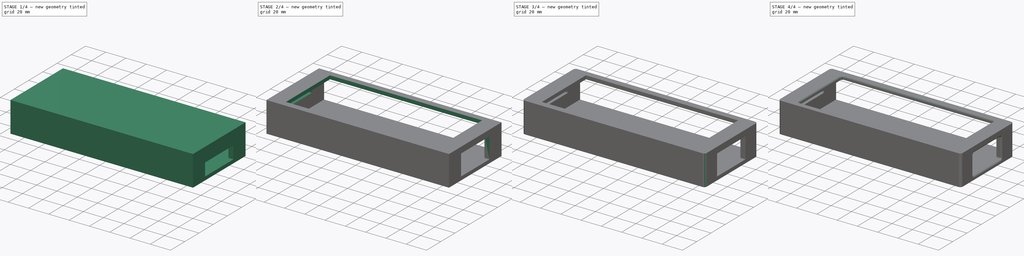
[diagram: build sequence overview — one tinted view per stage of 4, left to right]
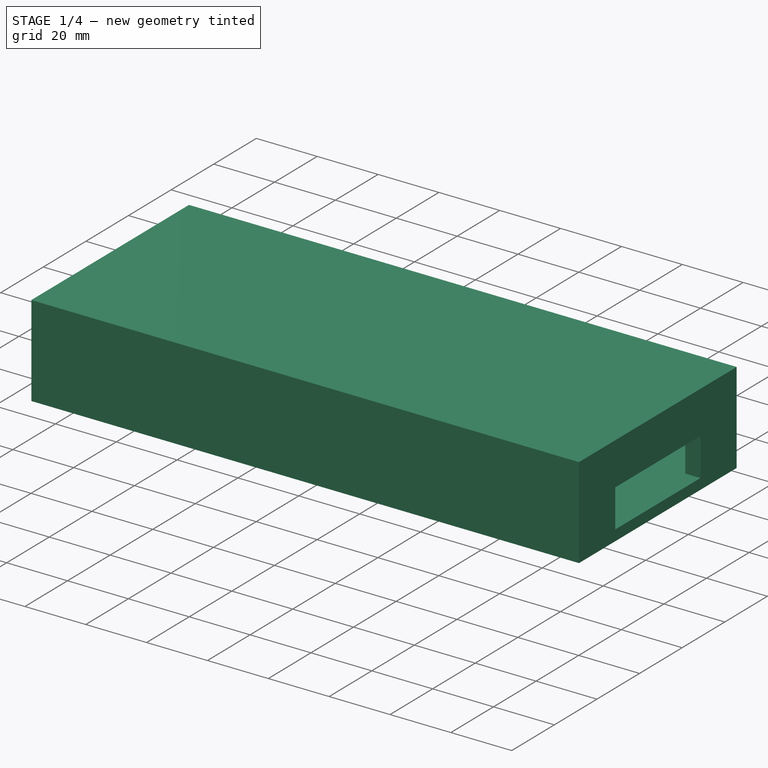
[diagram: stage 1 of 4 — iso view after this stage's code; geometry added in this stage tinted green]
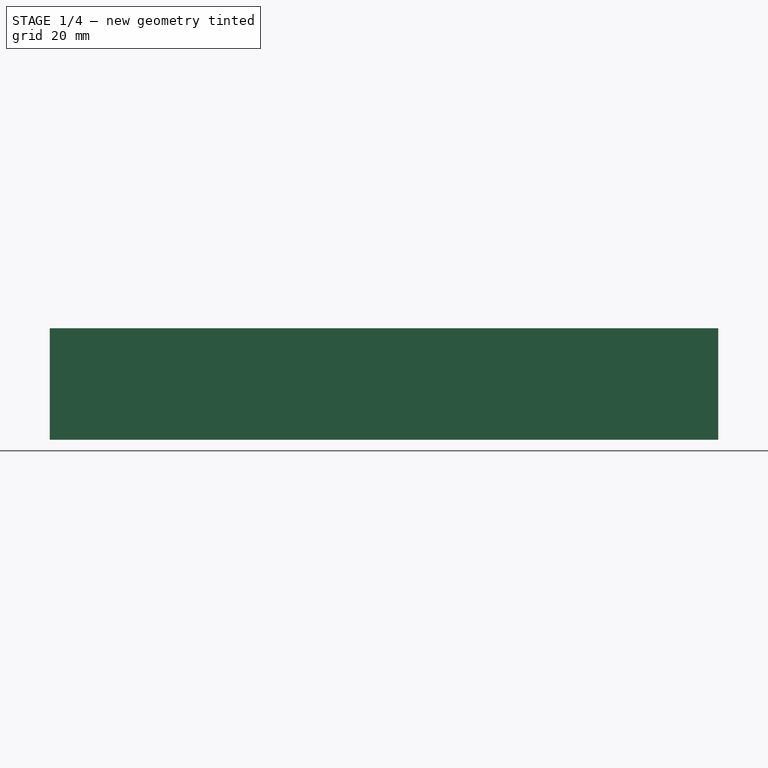
[diagram: stage 1 of 4 — front view after this stage's code; geometry added in this stage tinted green]
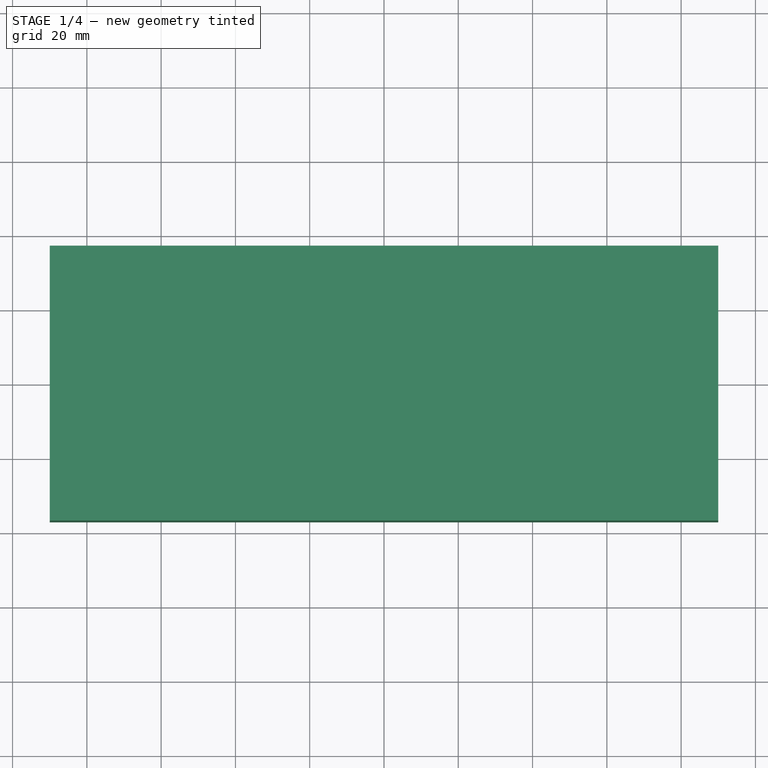
[diagram: stage 1 of 4 — top view after this stage's code; geometry added in this stage tinted green]
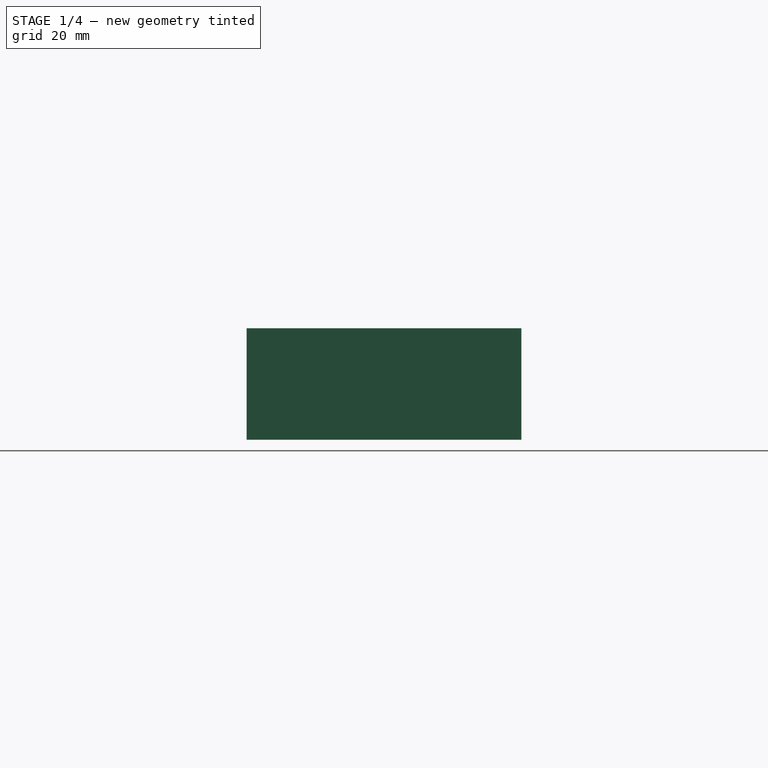
[diagram: stage 1 of 4 — right view after this stage's code; geometry added in this stage tinted green]
FCSTD DOCUMENT  (FreeCAD 1.0R39109 (Git))
Label: PortableMonitor_Phone_Fold3
License: All rights reserved
LicenseURL: https://en.wikipedia.org/wiki/All_rights_reserved
objects: Sketcher::SketchObject×7, PartDesign::Pocket×6, PartDesign::Fillet×4, PartDesign::Pad×1, PartDesign::Body×1
note: 48 computed .brp shape members not serialized (recipe doc carries the construction recipe); baked Part::Feature solids carry a one-line shape summary decoded from their .brp

FEATURE [Sketcher::SketchObject] Sketch  label="Sketch_Body"
  ArcFitTolerance = 1e-06
  AttachmentSupport = -> [XY_Plane]
  FullyConstrained = true
  MakeInternals = false
  MapMode = 5
  sketch-geometry (5):
    g0: LineSegment StartX=-90 StartY=-37 StartZ=0 EndX=90 EndY=-37 EndZ=0
    g1: LineSegment StartX=90 StartY=-37 StartZ=0 EndX=90 EndY=37 EndZ=0
    g2: LineSegment StartX=90 StartY=37 StartZ=0 EndX=-90 EndY=37 EndZ=0
    g3: LineSegment StartX=-90 StartY=37 StartZ=0 EndX=-90 EndY=-37 EndZ=0
    g4: GeomPoint [constr] X=0 Y=0 Z=0
  constraints (12):
    c: Coincident(g0,g1)
    c: Coincident(g1,g2)
    c: Coincident(g2,g3)
    c: Coincident(g3,g0)
    c: Horizontal(g0)
    c: Horizontal(g2)
    c: Vertical(g1)
    c: Vertical(g3)
    c: Symmetric(g2,g0,g4)
    c: Distance(g1,g3) = 180
    c: Distance(g0,g2) = 74
    c: Coincident(g4,g-1)
FEATURE [PartDesign::Pad] Pad  label="Body"
  Direction = (0,0,1)
  Length = 30
  Length2 = 10
  Profile = -> Sketch
  ReferenceAxis = -> Sketch [N_Axis]
  Refine = true
  Suppressed = false
  Type = 0
FEATURE [Sketcher::SketchObject] Sketch001  label="Sketch_InnerFold3"
  ArcFitTolerance = 1e-06
  AttachmentSupport = -> [Pad]
  FullyConstrained = true
  MakeInternals = false
  MapMode = 5
  Placement = pos=(0,37,0) rot=(0,0.707107,0.707107;3.14159rad)
  sketch-geometry (5):
    g0: LineSegment StartX=-85 StartY=3.5 StartZ=0 EndX=85 EndY=3.5 EndZ=0
    g1: LineSegment StartX=85 StartY=3.5 StartZ=0 EndX=85 EndY=26.5 EndZ=0
    g2: LineSegment StartX=85 StartY=26.5 StartZ=0 EndX=-85 EndY=26.5 EndZ=0
    g3: LineSegment StartX=-85 StartY=26.5 StartZ=0 EndX=-85 EndY=3.5 EndZ=0
    g4: GeomPoint [constr] X=0 Y=15 Z=0
  constraints (13):
    c: Coincident(g0,g1)
    c: Coincident(g1,g2)
    c: Coincident(g2,g3)
    c: Coincident(g3,g0)
    c: Horizontal(g0)
    c: Horizontal(g2)
    c: Vertical(g1)
    c: Vertical(g3)
    c: Symmetric(g2,g0,g4)
    c: Distance(g1,g3) = 170
    c: Distance(g0,g2) = 23
    c: Vertical(g4,g-1)
    c: Distance(g-1,g0) = 3.5
FEATURE [PartDesign::Pocket] Pocket  label="InnerFold3"
  BaseFeature = -> Pad
  Direction = (0,-1,2e-16)
  Length = 71
  Length2 = 5
  Profile = -> Sketch001
  ReferenceAxis = -> Sketch001 [N_Axis]
  Refine = true
  Suppressed = false
  Type = 0
FEATURE [Sketcher::SketchObject] Sketch002  label="Sketch_HoleUSB"
  ArcFitTolerance = 1e-06
  AttachmentSupport = -> [Pocket]
  FullyConstrained = true
  MakeInternals = false
  MapMode = 5
  Placement = pos=(90,0,0) rot=(0.57735,0.57735,0.57735;2.0944rad)
  sketch-geometry (5):
    g0: LineSegment StartX=-20 StartY=3.5 StartZ=0 EndX=20 EndY=3.5 EndZ=0
    g1: LineSegment StartX=20 StartY=3.5 StartZ=0 EndX=20 EndY=16 EndZ=0
    g2: LineSegment StartX=20 StartY=16 StartZ=0 EndX=-20 EndY=16 EndZ=0
    g3: LineSegment StartX=-20 StartY=16 StartZ=0 EndX=-20 EndY=3.5 EndZ=0
    g4: GeomPoint [constr] X=0 Y=9.75 Z=0
  constraints (13):
    c: Coincident(g0,g1)
    c: Coincident(g1,g2)
    c: Coincident(g2,g3)
    c: Coincident(g3,g0)
    c: Horizontal(g0)
    c: Horizontal(g2)
    c: Vertical(g1)
    c: Vertical(g3)
    c: Symmetric(g2,g0,g4)
    c: Distance(g1,g3) = 40
    c: Distance(g0,g2) = 12.5
    c: Vertical(g-1,g4)
    c: Distance(g-1,g0) = 3.5
FEATURE [PartDesign::Pocket] Pocket001  label="HoleUSB"
  BaseFeature = -> Pocket
  Direction = (-1,0,0)
  Length = 5
  Length2 = 5
  Profile = -> Sketch002
  ReferenceAxis = -> Sketch002 [N_Axis]
  Refine = true
  Suppressed = false
  Type = 0
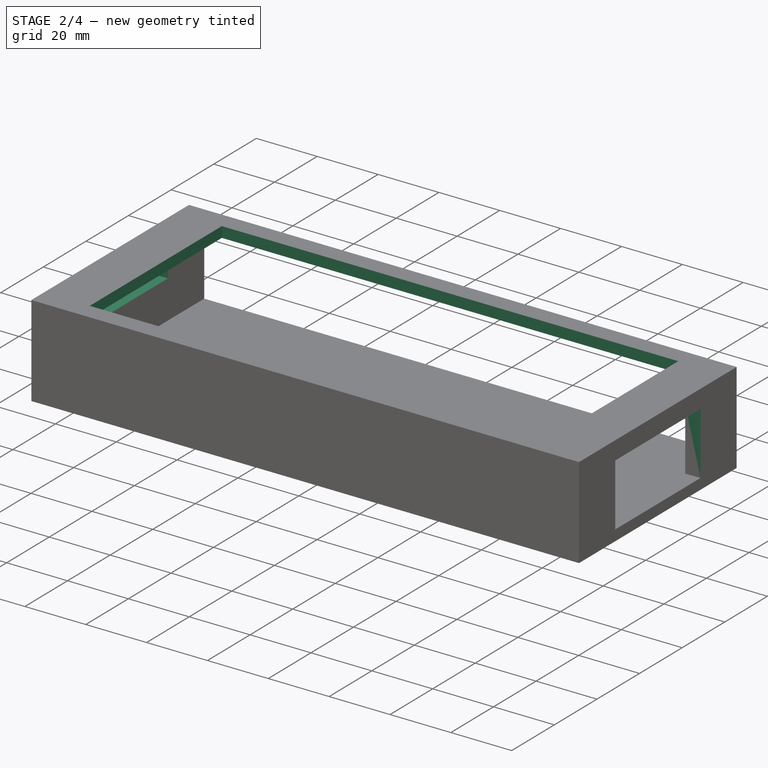
[diagram: stage 2 of 4 — iso view after this stage's code; geometry added in this stage tinted green]
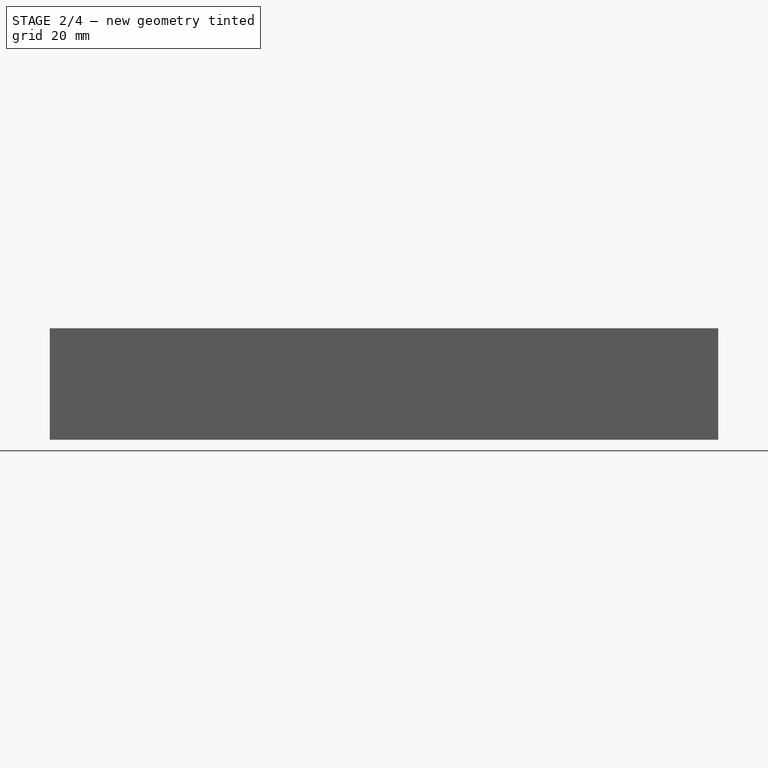
[diagram: stage 2 of 4 — front view after this stage's code; geometry added in this stage tinted green]
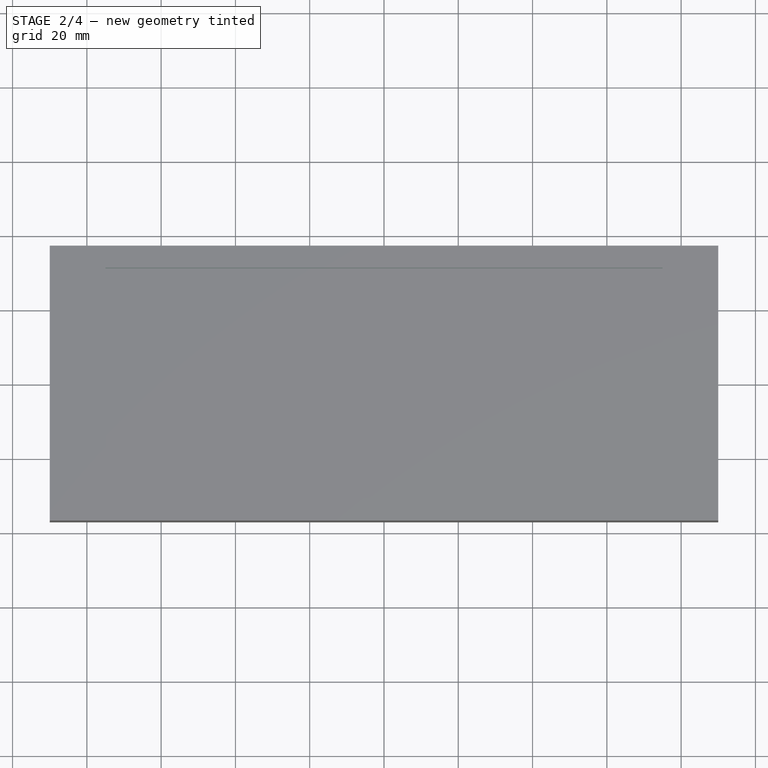
[diagram: stage 2 of 4 — top view after this stage's code; geometry added in this stage tinted green]
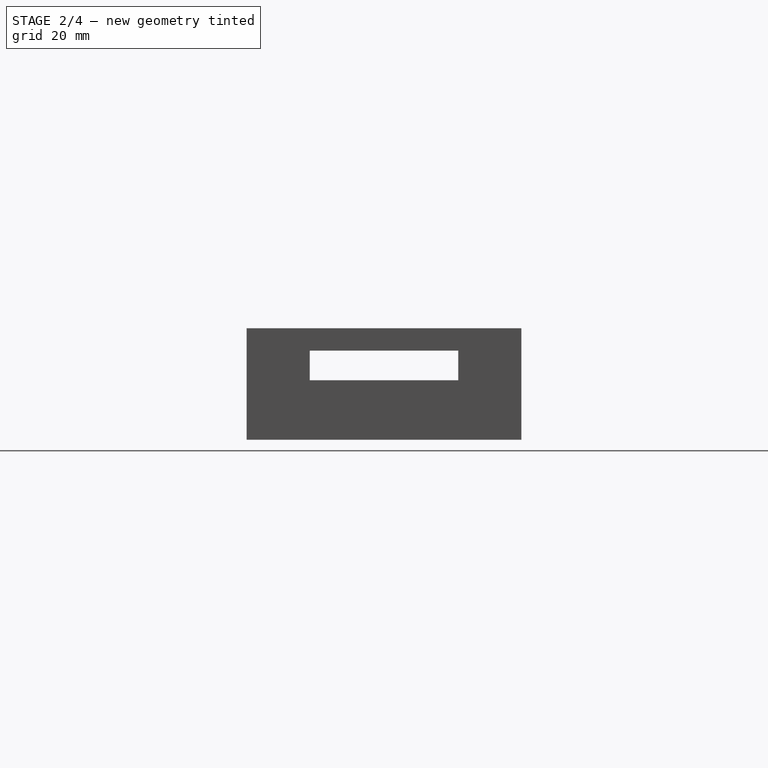
[diagram: stage 2 of 4 — right view after this stage's code; geometry added in this stage tinted green]
FEATURE [Sketcher::SketchObject] Sketch003  label="Sketch_HoleSPK"
  ArcFitTolerance = 1e-06
  AttachmentSupport = -> [Pocket001]
  FullyConstrained = true
  MakeInternals = false
  MapMode = 5
  Placement = pos=(-90,0,0) rot=(0.57735,-0.57735,-0.57735;2.0944rad)
  sketch-geometry (5):
    g0: LineSegment StartX=-20 StartY=16 StartZ=0 EndX=20 EndY=16 EndZ=0
    g1: LineSegment StartX=20 StartY=16 StartZ=0 EndX=20 EndY=24 EndZ=0
    g2: LineSegment StartX=20 StartY=24 StartZ=0 EndX=-20 EndY=24 EndZ=0
    g3: LineSegment StartX=-20 StartY=24 StartZ=0 EndX=-20 EndY=16 EndZ=0
    g4: GeomPoint [constr] X=0 Y=20 Z=0
  constraints (13):
    c: Coincident(g0,g1)
    c: Coincident(g1,g2)
    c: Coincident(g2,g3)
    c: Coincident(g3,g0)
    c: Horizontal(g0)
    c: Horizontal(g2)
    c: Vertical(g1)
    c: Vertical(g3)
    c: Symmetric(g2,g0,g4)
    c: Distance(g1,g3) = 40
    c: Distance(g0,g2) = 8
    c: Vertical(g-1,g4)
    c: DistanceY(g-1,g4) = 20
FEATURE [PartDesign::Pocket] Pocket002  label="HoleSPK"
  BaseFeature = -> Pocket001
  Direction = (1,0,0)
  Length = 200
  Length2 = 5
  Profile = -> Sketch003
  ReferenceAxis = -> Sketch003 [N_Axis]
  Refine = true
  Suppressed = false
  Type = 0
FEATURE [Sketcher::SketchObject] Sketch004  label="Sketch_HoleDisplay"
  ArcFitTolerance = 1e-06
  AttachmentSupport = -> [Pocket002]
  FullyConstrained = true
  MakeInternals = false
  MapMode = 5
  Placement = pos=(0,0,30) rot=(0,0,1;0rad)
  sketch-geometry (5):
    g0: LineSegment StartX=-75 StartY=-31 StartZ=0 EndX=75 EndY=-31 EndZ=0
    g1: LineSegment StartX=75 StartY=-31 StartZ=0 EndX=75 EndY=31 EndZ=0
    g2: LineSegment StartX=75 StartY=31 StartZ=0 EndX=-75 EndY=31 EndZ=0
    g3: LineSegment StartX=-75 StartY=31 StartZ=0 EndX=-75 EndY=-31 EndZ=0
    g4: GeomPoint [constr] X=0 Y=0 Z=0
  constraints (12):
    c: Coincident(g0,g1)
    c: Coincident(g1,g2)
    c: Coincident(g2,g3)
    c: Coincident(g3,g0)
    c: Horizontal(g0)
    c: Horizontal(g2)
    c: Vertical(g1)
    c: Vertical(g3)
    c: Symmetric(g2,g0,g4)
    c: Distance(g1,g3) = 150
    c: Distance(g0,g2) = 62
    c: Coincident(g4,g-1)
FEATURE [PartDesign::Pocket] Pocket003  label="HoleDisplay"
  BaseFeature = -> Pocket002
  Direction = (0,0,-1)
  Length = 5
  Length2 = 5
  Profile = -> Sketch004
  ReferenceAxis = -> Sketch004 [N_Axis]
  Refine = true
  Suppressed = false
  Type = 0
FEATURE [Sketcher::SketchObject] Sketch005  label="Sketch_MateMain"
  ArcFitTolerance = 1e-06
  AttachmentSupport = -> [Pocket003]
  FullyConstrained = true
  MakeInternals = false
  MapMode = 5
  Placement = pos=(0,0,0) rot=(1,0,0;3.14159rad)
  sketch-geometry (10):
    g0: LineSegment StartX=-80 StartY=17 StartZ=0 EndX=20 EndY=17 EndZ=0
    g1: LineSegment StartX=20 StartY=17 StartZ=0 EndX=20 EndY=27 EndZ=0
    g2: LineSegment StartX=20 StartY=27 StartZ=0 EndX=-80 EndY=27 EndZ=0
    g3: LineSegment StartX=-80 StartY=27 StartZ=0 EndX=-80 EndY=17 EndZ=0
    g4: GeomPoint [constr] X=-30 Y=22 Z=0
    g5: LineSegment [constr] StartX=-90 StartY=-37 StartZ=0 EndX=90 EndY=-37 EndZ=0
    g6: LineSegment [constr] StartX=90 StartY=-37 StartZ=0 EndX=90 EndY=37 EndZ=0
    g7: LineSegment [constr] StartX=90 StartY=37 StartZ=0 EndX=-90 EndY=37 EndZ=0
    g8: LineSegment [constr] StartX=-90 StartY=37 StartZ=0 EndX=-90 EndY=-37 EndZ=0
    g9: GeomPoint [constr] X=0 Y=0 Z=0
  constraints (25):
    c: Coincident(g0,g1)
    c: Coincident(g1,g2)
    c: Coincident(g2,g3)
    c: Coincident(g3,g0)
    c: Horizontal(g0)
    c: Horizontal(g2)
    c: Vertical(g1)
    c: Vertical(g3)
    c: Symmetric(g2,g0,g4)
    c: Distance(g1,g3) = 100
    c: Distance(g0,g2) = 10
    c: Coincident(g5,g6)
    c: Coincident(g6,g7)
    c: Coincident(g7,g8)
    c: Coincident(g8,g5)
    c: Horizontal(g5)
    c: Horizontal(g7)
    c: Vertical(g6)
    c: Vertical(g8)
    c: Symmetric(g7,g5,g9)
    c: Distance(g6,g8) = 180
    c: Distance(g5,g7) = 74
    c: Coincident(g9,g-1)
    c: DistanceY(g2,g7) = 10
    c: Distance(g8,g3) = 10
FEATURE [Sketcher::SketchObject] Sketch006  label="Sketch_Hole_Screw_VESA"
  ArcFitTolerance = 1e-06
  FullyConstrained = true
  MakeInternals = false
  MapMode = 5
  Placement = pos=(0,0,3.5) rot=(0,0,1;0rad)
  sketch-geometry (1):
    g0: Circle CenterX=21.5 CenterY=-4.5 CenterZ=0 NormalX=0 NormalY=0 NormalZ=1 AngleXU=0 Radius=6
  constraints (3):
    c: Diameter(g0) = 12
    c: DistanceX(g-1,g0) = 21.5
    c: Distance(g0,g-1) = 4.5
FEATURE [PartDesign::Pocket] Pocket004  label="MateMain"
  BaseFeature = -> Pocket003
  Direction = (0,0,1)
  Length = 1.7
  Length2 = 5
  Profile = -> Sketch005
  ReferenceAxis = -> Sketch005 [N_Axis]
  Refine = true
  Suppressed = false
  Type = 0
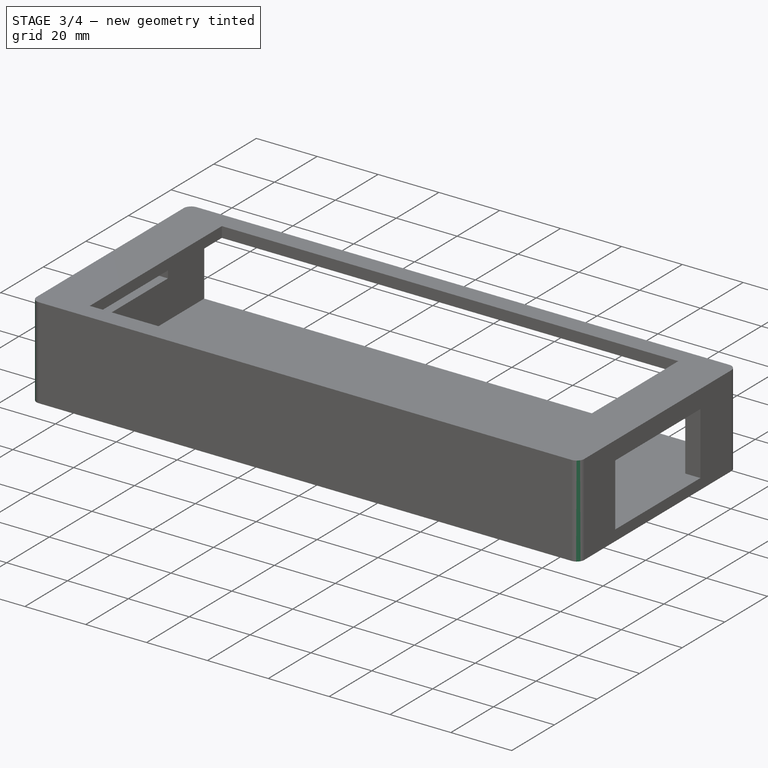
[diagram: stage 3 of 4 — iso view after this stage's code; geometry added in this stage tinted green]
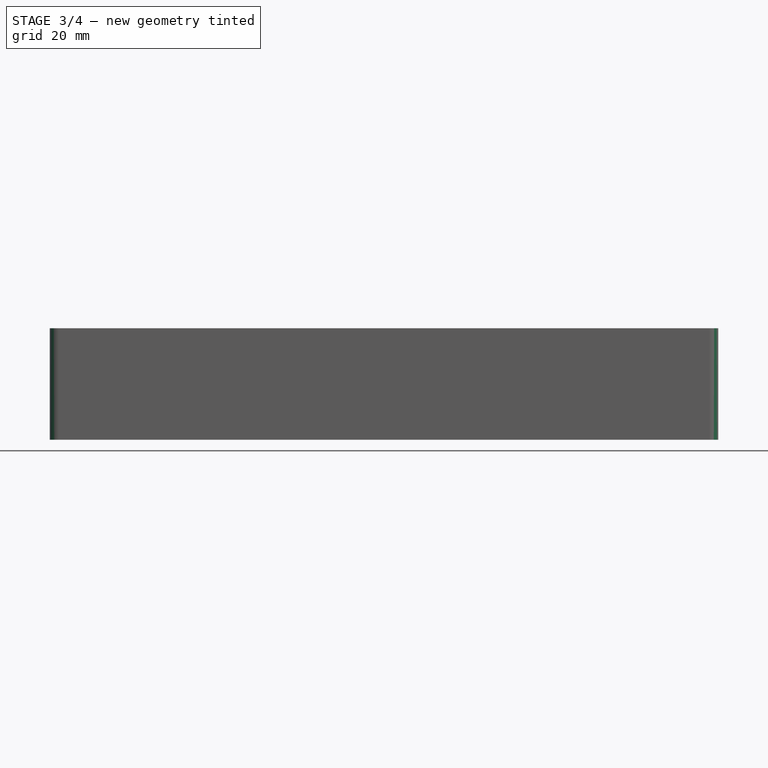
[diagram: stage 3 of 4 — front view after this stage's code; geometry added in this stage tinted green]
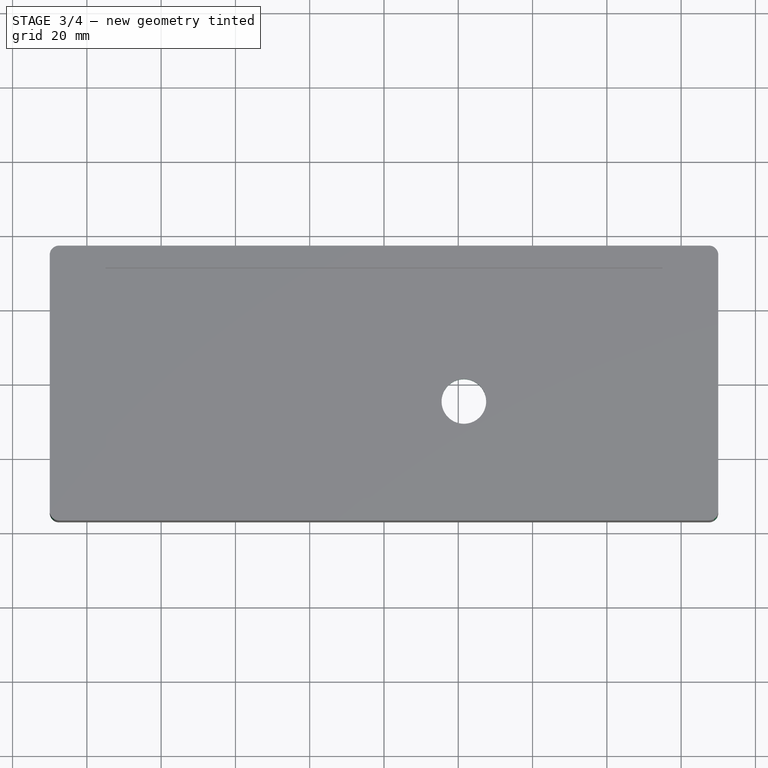
[diagram: stage 3 of 4 — top view after this stage's code; geometry added in this stage tinted green]
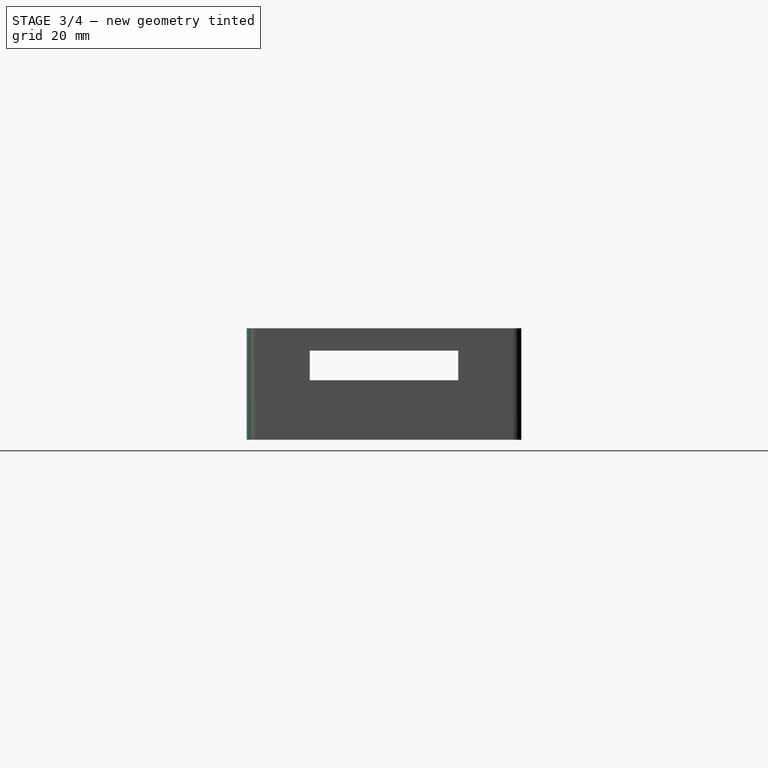
[diagram: stage 3 of 4 — right view after this stage's code; geometry added in this stage tinted green]
FEATURE [PartDesign::Pocket] Pocket005  label="Pocket_HoleScrewVESA"
  BaseFeature = -> Pocket004
  Direction = (0,0,-1)
  Length = 5
  Length2 = 5
  Profile = -> Sketch006
  ReferenceAxis = -> Sketch006 [N_Axis]
  Refine = true
  Suppressed = false
  Type = 0
FEATURE [PartDesign::Fillet] Fillet  label="Fillet_Fold3_Corner"
  Base = -> Pocket005 [Edge14,Edge2,Edge5,Edge1]
  BaseFeature = -> Pocket005
  Radius = 2.5
  Refine = true
  SupportTransform = false
  Suppressed = false
  UseAllEdges = false
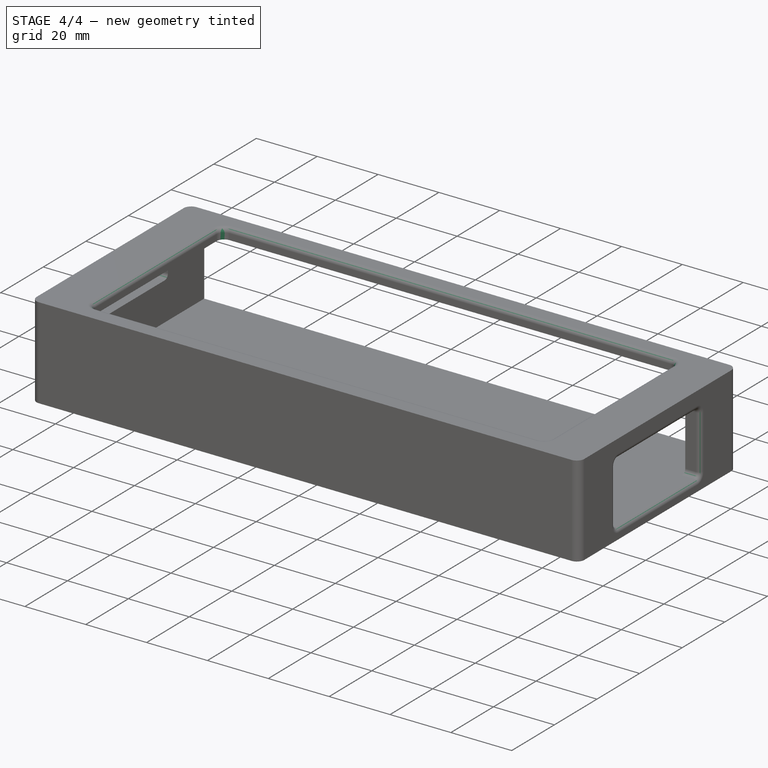
[diagram: stage 4 of 4 — iso view after this stage's code; geometry added in this stage tinted green]
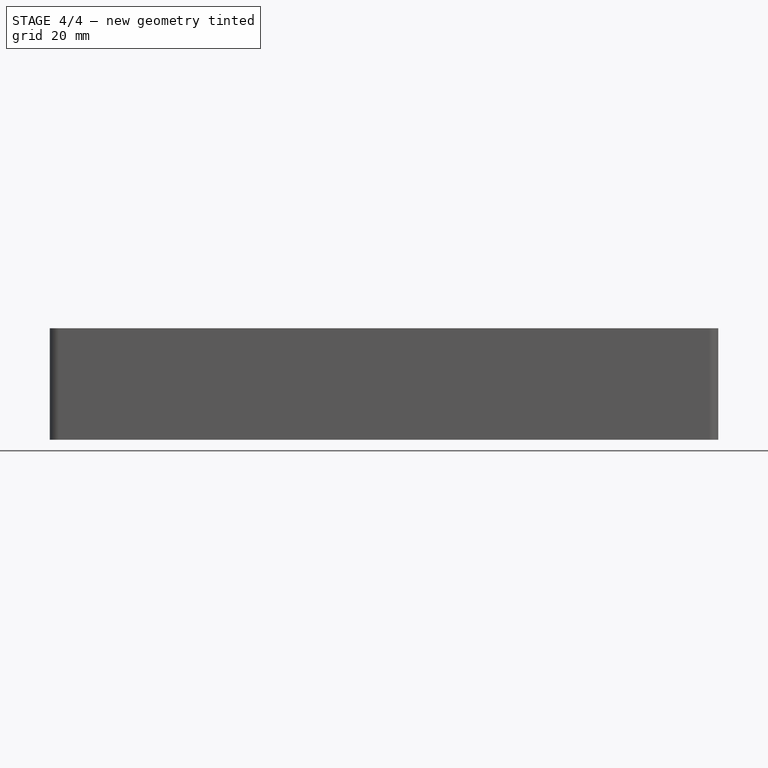
[diagram: stage 4 of 4 — front view after this stage's code; geometry added in this stage tinted green]
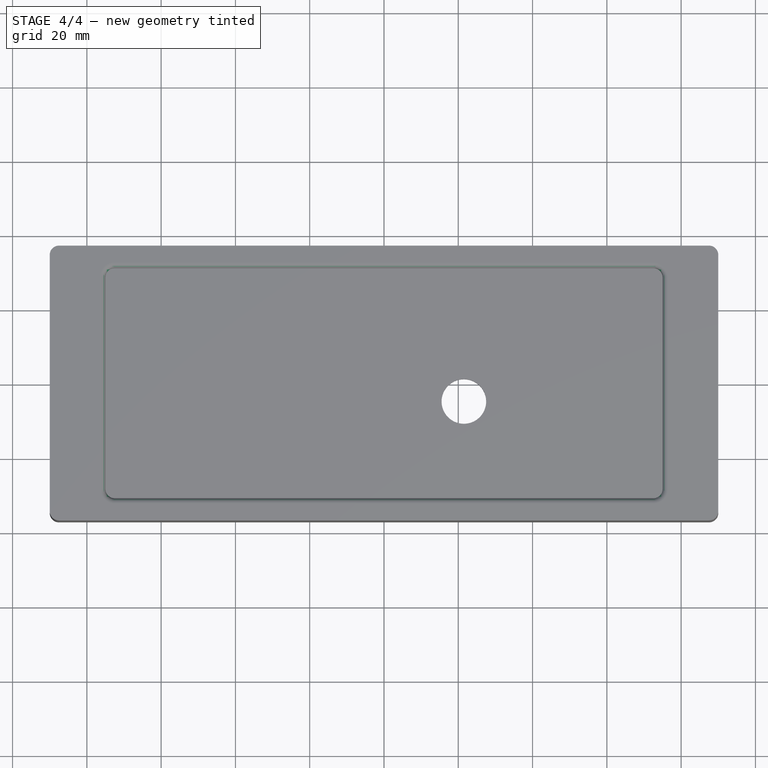
[diagram: stage 4 of 4 — top view after this stage's code; geometry added in this stage tinted green]
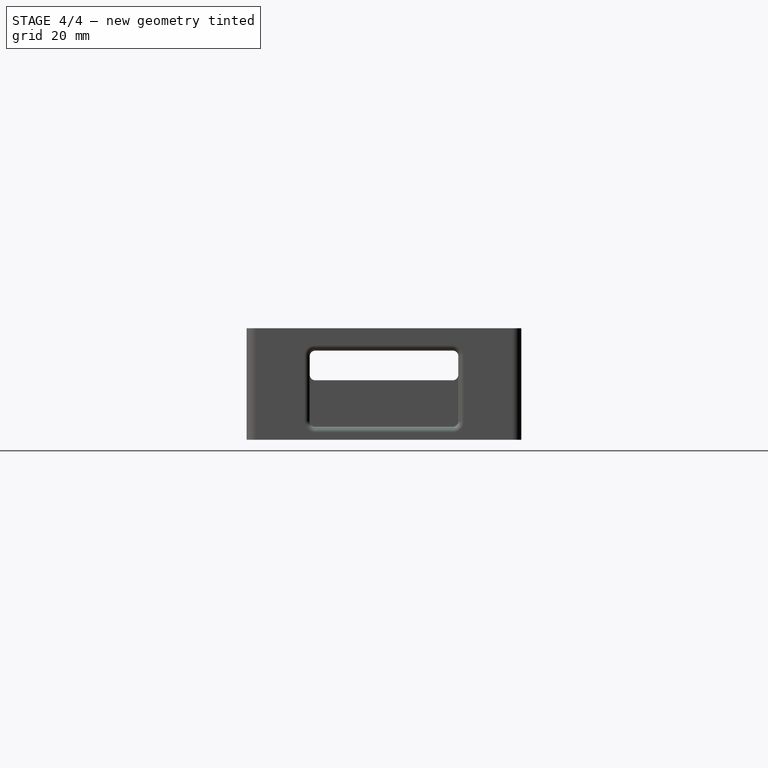
[diagram: stage 4 of 4 — right view after this stage's code; geometry added in this stage tinted green]
FEATURE [PartDesign::Fillet] Fillet001  label="Fillet_Fold3_SPKHole"
  Base = -> Fillet [Edge73,Edge74,Edge77,Edge76,Edge36,Edge37,Edge38,Edge39,Edge31,Edge34,Edge32,Edge33,Edge66,Edge68,Edge69,Edge64]
  BaseFeature = -> Fillet
  Radius = 1.5
  Refine = true
  SupportTransform = false
  Suppressed = false
  UseAllEdges = false
FEATURE [PartDesign::Fillet] Fillet002  label="Fillet_Fold3_Screen_corner"
  Base = -> Fillet001 [Edge101,Edge98,Edge99,Edge96]
  BaseFeature = -> Fillet001
  Radius = 2.5
  Refine = true
  SupportTransform = false
  Suppressed = false
  UseAllEdges = false
FEATURE [PartDesign::Fillet] Fillet003  label="Fillet_Fold3_Screen_corner2"
  Base = -> Fillet002 [Edge4,Edge8,Edge5,Edge1]
  BaseFeature = -> Fillet002
  Radius = 1.5
  Refine = true
  SupportTransform = false
  Suppressed = false
  UseAllEdges = false
FEATURE [PartDesign::Body] Body  label="Body_Fold3"
  AllowCompound = false
  Group = -> [Sketch,Pad,Sketch001,Pocket,Sketch002,Pocket001,Sketch003,Pocket002,Sketch004,Pocket003,Sketch005,Sketch006,Pocket004,Pocket005,Fillet,Fillet001,Fillet002,Fillet003]
  Origin = -> Origin
  Tip = -> Fillet003
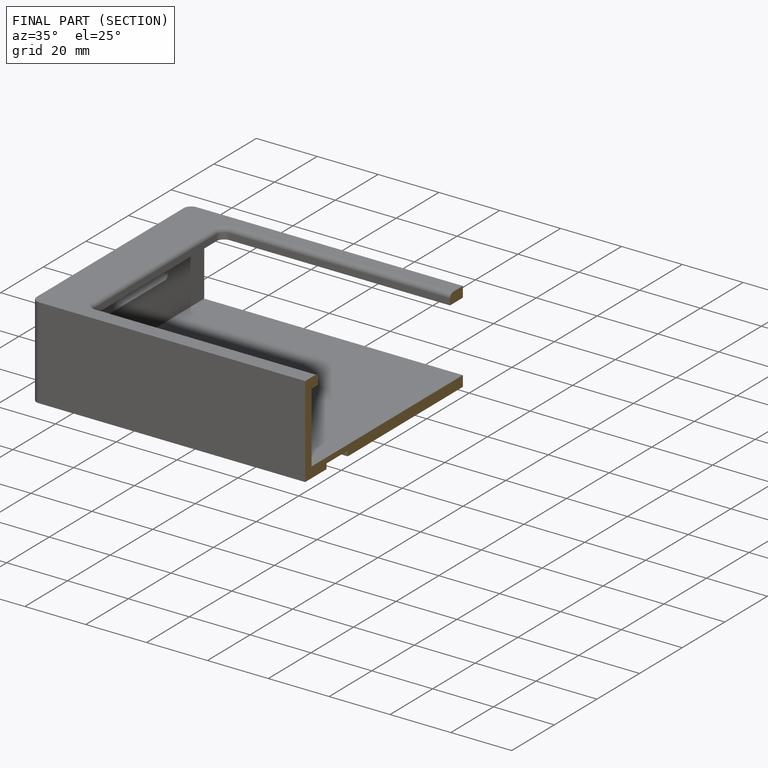
[diagram: finished part — half-section view (interior)]
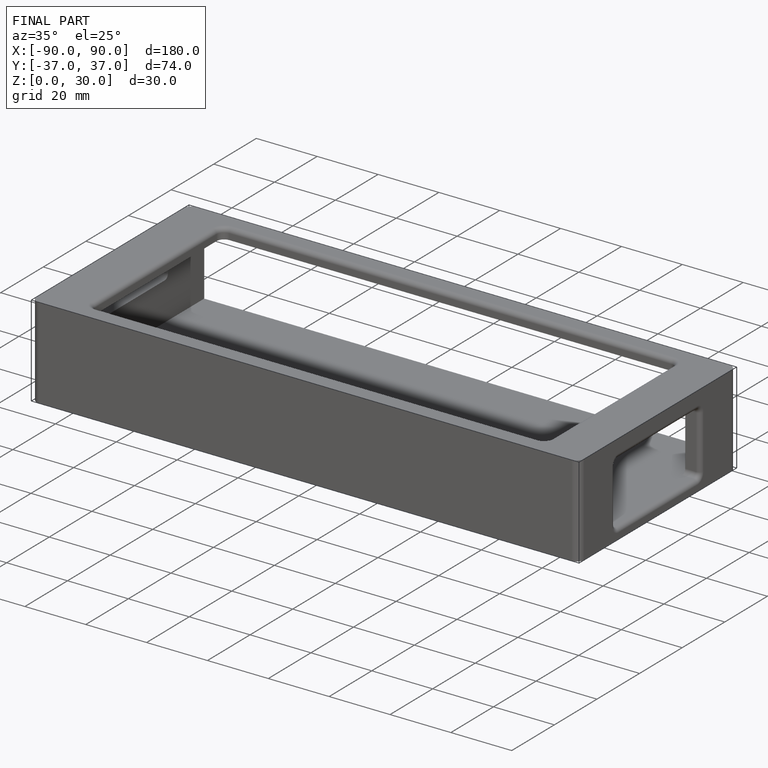
[diagram: finished part — iso view with bounding-box wireframe]
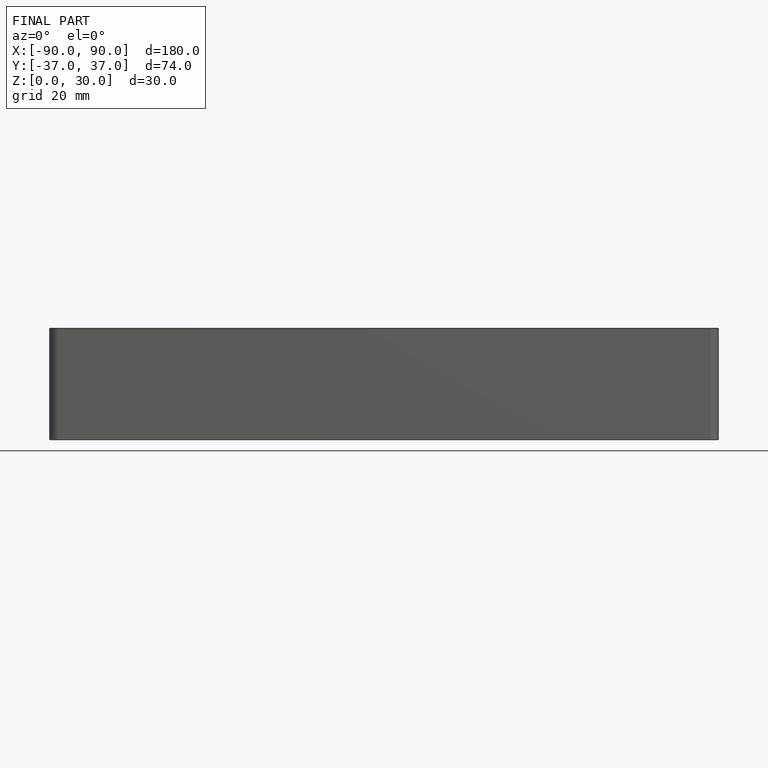
[diagram: finished part — front view with bounding-box wireframe]
